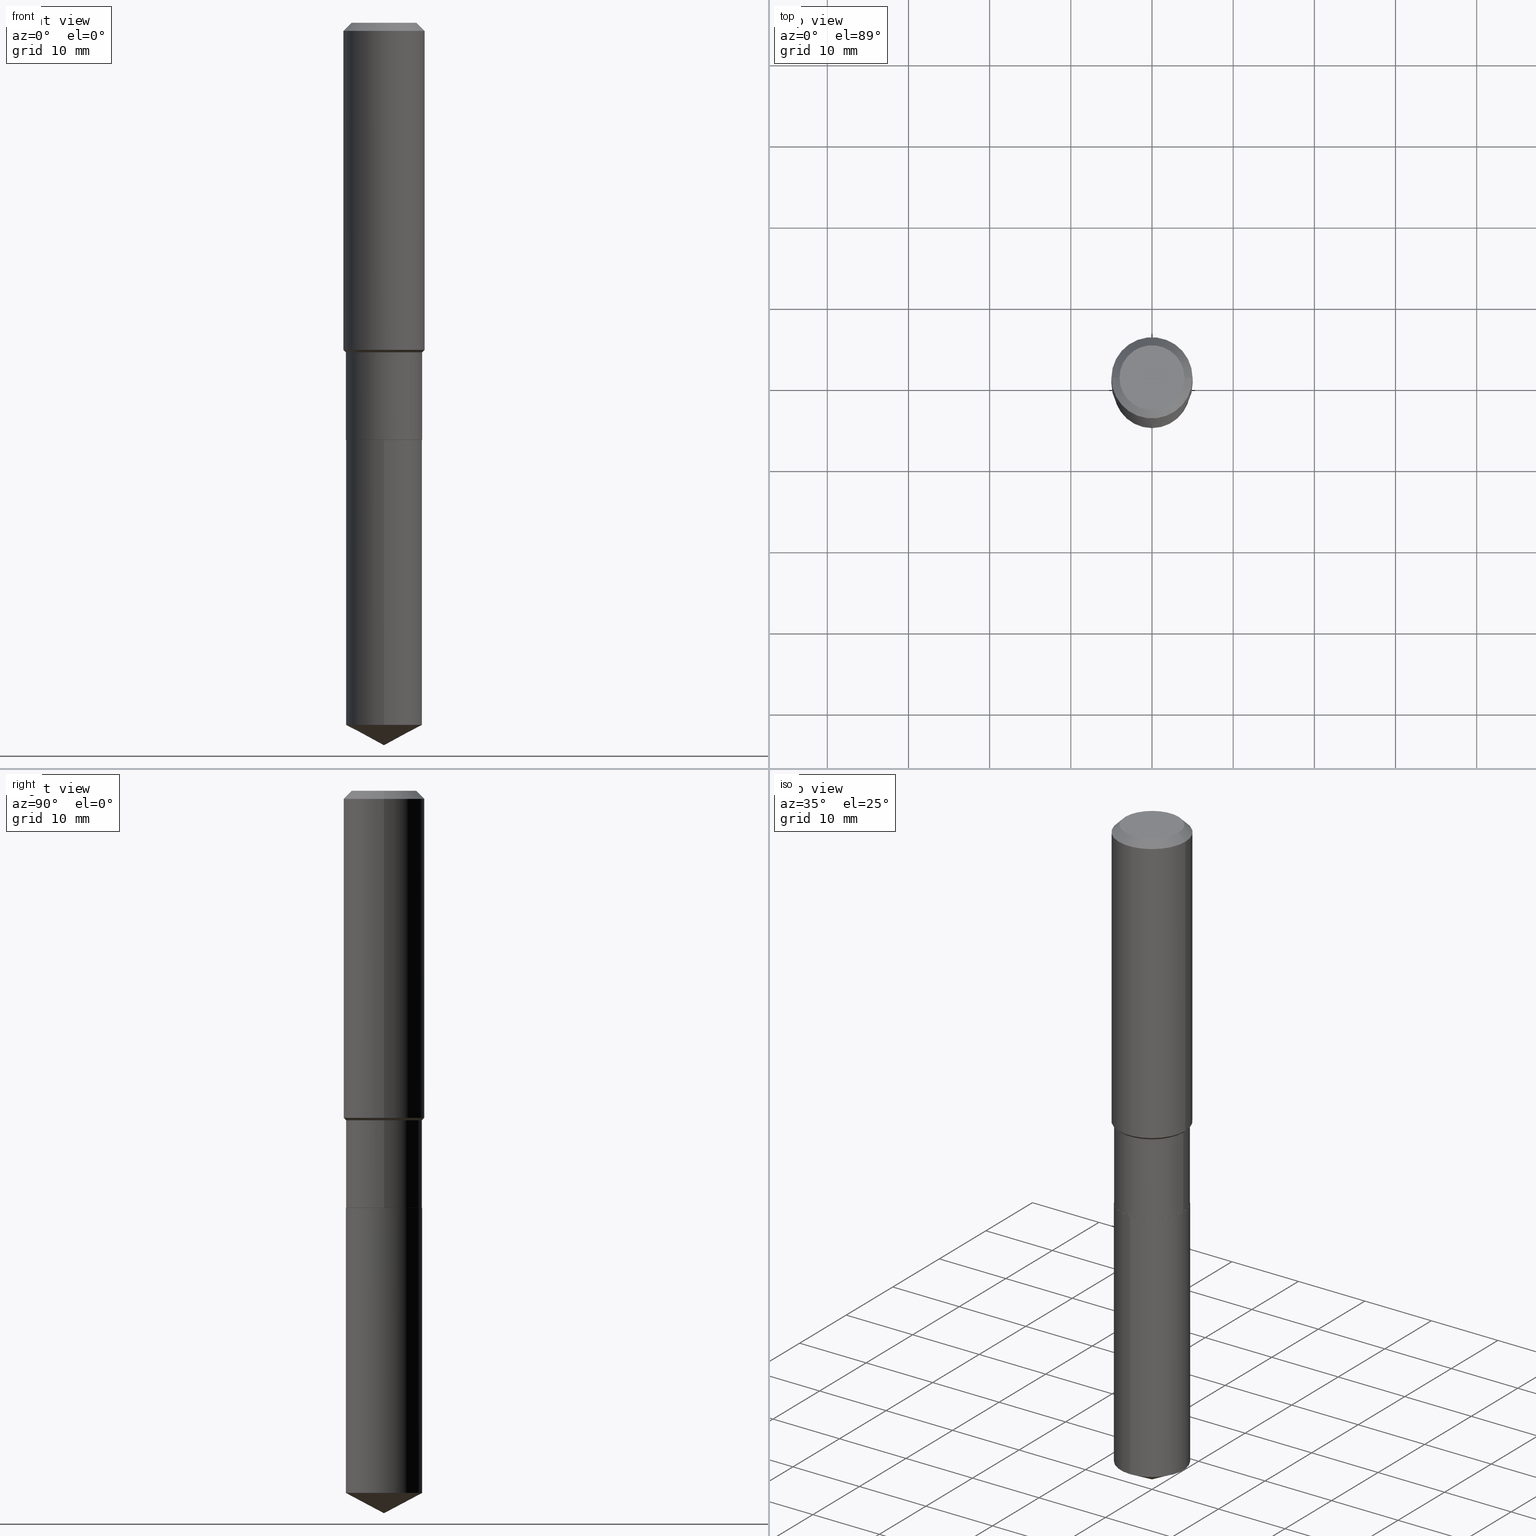
[diagram: canonical four-view strip — front | top / right | iso, engineering-drawing reading convention]
A machine part, canonical four-view strip (front | top / right | iso — engineering-drawing reading convention). The complete STEP part file that produces these views, byte-faithful:
ISO-10303-21;
HEADER;
FILE_DESCRIPTION (( 'STEP AP203' ),
    '1' );
FILE_NAME ('67664.STEP',
    '2024-04-25T08:45:09',
    ( '' ),
    ( '' ),
    'SwSTEP 2.0',
    'SolidWorks 2023',
    '' );
FILE_SCHEMA (( 'CONFIG_CONTROL_DESIGN' ));
ENDSEC;

DATA;
#1 = ADVANCED_FACE ( 'NONE', ( #170 ), #181, .T. ) ;
#2 = DIRECTION ( 'NONE',  ( -2.445468806185136877E-29, 3.491481338843145188E-15, 1.000000000000000000 ) ) ;
#3 = FACE_OUTER_BOUND ( 'NONE', #143, .T. ) ;
#4 = DIRECTION ( 'NONE',  ( -2.438088387897960049E-29, 3.491481338843145188E-15, 1.000000000000000000 ) ) ;
#5 = AXIS2_PLACEMENT_3D ( 'NONE', #405, #36, #151 ) ;
#6 = AXIS2_PLACEMENT_3D ( 'NONE', #104, #395, #252 ) ;
#7 = EDGE_CURVE ( 'NONE', #124, #20, #22, .T. ) ;
#8 = DIRECTION ( 'NONE',  ( 1.000000000000000000, -6.982962677686265922E-15, 4.876176775795935793E-29 ) ) ;
#9 = ADVANCED_FACE ( 'NONE', ( #106 ), #403, .T. ) ;
#10 = PLANE ( 'NONE',  #28 ) ;
#11 = AXIS2_PLACEMENT_3D ( 'NONE', #12, #423, #97 ) ;
#12 = CARTESIAN_POINT ( 'NONE',  ( 0.000000000000000000, 0.000000000000000000, 0.000000000000000000 ) ) ;
#13 = LINE ( 'NONE', #299, #365 ) ;
#14 = DIRECTION ( 'NONE',  ( -2.445468806185136597E-29, 3.491481338843145583E-15, 1.000000000000000000 ) ) ;
#15 = VERTEX_POINT ( 'NONE', #142 ) ;
#16 = AXIS2_PLACEMENT_3D ( 'NONE', #226, #111, #412 ) ;
#17 = DIRECTION ( 'NONE',  ( -2.445517431145861124E-29, 3.491411705131827095E-15, 1.000000000000000000 ) ) ;
#18 = DIRECTION ( 'NONE',  ( -6.982962677686265133E-15, -1.000000000000000000, 2.952551195530141356E-15 ) ) ;
#19 = VERTEX_POINT ( 'NONE', #281 ) ;
#20 = VERTEX_POINT ( 'NONE', #438 ) ;
#21 = DIRECTION ( 'NONE',  ( -2.445468806185136597E-29, 3.491481338843145583E-15, 1.000000000000000000 ) ) ;
#22 = LINE ( 'NONE', #248, #374 ) ;
#23 = DIRECTION ( 'NONE',  ( 1.000000000000000000, -6.982962677686265922E-15, 0.000000000000000000 ) ) ;
#24 = EDGE_LOOP ( 'NONE', ( #359, #310, #61, #440 ) ) ;
#25 = CARTESIAN_POINT ( 'NONE',  ( -0.1850499999999999368, 1.314859332524064945E-15, -9.102489384516700747E-30 ) ) ;
#26 = DIRECTION ( 'NONE',  ( -2.445517431145861124E-29, 3.491411705131827095E-15, 1.000000000000000000 ) ) ;
#27 = DIRECTION ( 'NONE',  ( 1.000000000000000000, -6.982962677686265922E-15, 0.000000000000000000 ) ) ;
#28 = AXIS2_PLACEMENT_3D ( 'NONE', #95, #457, #304 ) ;
#29 = LOCAL_TIME ( 4, 45, 9.000000000000000000, #237 ) ;
#30 = CARTESIAN_POINT ( 'NONE',  ( -0.1850499999999999090, -4.264527846947281342E-15, -1.597999999999999643 ) ) ;
#31 = EDGE_LOOP ( 'NONE', ( #308, #482 ) ) ;
#32 = CALENDAR_DATE ( 2024, 25, 4 ) ;
#33 = ORIENTED_EDGE ( 'NONE', *, *, #473, .F. ) ;
#34 = LINE ( 'NONE', #312, #367 ) ;
#35 = DIRECTION ( 'NONE',  ( -2.445468806185136597E-29, 3.491481338843145583E-15, 1.000000000000000000 ) ) ;
#36 = DIRECTION ( 'NONE',  ( -2.445468806185136597E-29, 3.491481338843145583E-15, 1.000000000000000000 ) ) ;
#37 = VECTOR ( 'NONE', #179, 39.37007874015748143 ) ;
#38 = LOCAL_TIME ( 4, 45, 9.000000000000000000, #140 ) ;
#39 = VERTEX_POINT ( 'NONE', #400 ) ;
#40 = CARTESIAN_POINT ( 'NONE',  ( 3.907859152283848022E-29, -5.579387179471346287E-15, -1.597999999999999643 ) ) ;
#41 = PERSON_AND_ORGANIZATION_ROLE ( 'creator' ) ;
#42 = CIRCLE ( 'NONE', #102, 0.1850499999999999923 ) ;
#43 = CARTESIAN_POINT ( 'NONE',  ( 4.948650676196241876E-29, -7.065361637282988500E-15, -2.023599999999999621 ) ) ;
#44 = CARTESIAN_POINT ( 'NONE',  ( 3.907859152283848022E-29, -5.579387179471346287E-15, -1.597999999999999643 ) ) ;
#45 = FACE_OUTER_BOUND ( 'NONE', #76, .T. ) ;
#46 = VECTOR ( 'NONE', #229, 39.37007874015748143 ) ;
#47 = AXIS2_PLACEMENT_3D ( 'NONE', #323, #35, #27 ) ;
#48 = CC_DESIGN_PERSON_AND_ORGANIZATION_ASSIGNMENT ( #373, #372, ( #184 ) ) ;
#49 = CARTESIAN_POINT ( 'NONE',  ( 0.1968500000000000250, -1.512055823412797189E-15, -0.03937000000000029365 ) ) ;
#50 = CARTESIAN_POINT ( 'NONE',  ( 8.328128747852220188E-29, -1.189016850487806495E-14, -3.405507169671043499 ) ) ;
#51 = DIRECTION ( 'NONE',  ( 1.000000000000000000, -6.982962677686265922E-15, 0.000000000000000000 ) ) ;
#52 = EDGE_CURVE ( 'NONE', #472, #109, #397, .T. ) ;
#53 = CARTESIAN_POINT ( 'NONE',  ( 0.1850499999999999090, -6.871584422977188194E-15, -1.597999999999999643 ) ) ;
#54 = DIRECTION ( 'NONE',  ( 1.000000000000000000, 0.000000000000000000, 0.000000000000000000 ) ) ;
#55 = CARTESIAN_POINT ( 'NONE',  ( -0.1574800000000000089, 1.168406772637159618E-15, 3.855188123707939751E-18 ) ) ;
#56 = PERSON_AND_ORGANIZATION ( #284, #417 ) ;
#57 = VECTOR ( 'NONE', #487, 39.37007874015748143 ) ;
#58 = FACE_OUTER_BOUND ( 'NONE', #212, .T. ) ;
#59 = ORIENTED_EDGE ( 'NONE', *, *, #294, .T. ) ;
#60 = CC_DESIGN_PERSON_AND_ORGANIZATION_ASSIGNMENT ( #56, #272, ( #408 ) ) ;
#61 = ORIENTED_EDGE ( 'NONE', *, *, #459, .F. ) ;
#62 = ADVANCED_FACE ( 'NONE', ( #489 ), #215, .T. ) ;
#63 = ORIENTED_EDGE ( 'NONE', *, *, #198, .F. ) ;
#64 = FACE_OUTER_BOUND ( 'NONE', #360, .T. ) ;
#65 = ORIENTED_EDGE ( 'NONE', *, *, #144, .T. ) ;
#66 = FACE_OUTER_BOUND ( 'NONE', #430, .T. ) ;
#67 = AXIS2_PLACEMENT_3D ( 'NONE', #127, #265, #51 ) ;
#68 = ORIENTED_EDGE ( 'NONE', *, *, #7, .F. ) ;
#69 = AXIS2_PLACEMENT_3D ( 'NONE', #355, #21, #448 ) ;
#70 = EDGE_CURVE ( 'NONE', #109, #279, #333, .T. ) ;
#71 = VERTEX_POINT ( 'NONE', #49 ) ;
#72 = EDGE_CURVE ( 'NONE', #15, #19, #286, .T. ) ;
#73 = CARTESIAN_POINT ( 'NONE',  ( 0.000000000000000000, 0.000000000000000000, 0.000000000000000000 ) ) ;
#74 =( CONVERSION_BASED_UNIT ( 'INCH', #364 ) LENGTH_UNIT ( ) NAMED_UNIT ( #185 ) );
#75 = DIRECTION ( 'NONE',  ( -0.7071067811865526798, 7.493145998870373093E-15, 0.7071067811865424657 ) ) ;
#76 = EDGE_LOOP ( 'NONE', ( #68, #381, #285 ) ) ;
#77 = APPROVAL_ROLE ( '' ) ;
#78 = AXIS2_PLACEMENT_3D ( 'NONE', #236, #17, #123 ) ;
#79 = DIRECTION ( 'NONE',  ( -6.982962677686265133E-15, -1.000000000000000000, 2.952551195530141356E-15 ) ) ;
#80 = AXIS2_PLACEMENT_3D ( 'NONE', #238, #203, #340 ) ;
#81 = EDGE_CURVE ( 'NONE', #194, #71, #84, .T. ) ;
#82 = DIRECTION ( 'NONE',  ( -2.445468806185136597E-29, 3.491481338843145583E-15, 1.000000000000000000 ) ) ;
#83 = ORIENTED_EDGE ( 'NONE', *, *, #486, .F. ) ;
#84 = CIRCLE ( 'NONE', #152, 0.1968500000000000250 ) ;
#85 = EDGE_CURVE ( 'NONE', #138, #466, #13, .T. ) ;
#86 = EDGE_CURVE ( 'NONE', #19, #15, #358, .T. ) ;
#87 = CARTESIAN_POINT ( 'NONE',  ( 0.1968500000000000250, -1.487948651171581601E-15, -0.03937000000000029365 ) ) ;
#88 = ADVANCED_FACE ( 'NONE', ( #163 ), #378, .T. ) ;
#89 = CARTESIAN_POINT ( 'NONE',  ( 4.948650676196241876E-29, -7.065361637282988500E-15, -2.023599999999999621 ) ) ;
#90 = AXIS2_PLACEMENT_3D ( 'NONE', #232, #422, #263 ) ;
#91 = AXIS2_PLACEMENT_3D ( 'NONE', #43, #4, #8 ) ;
#92 = EDGE_CURVE ( 'NONE', #39, #472, #126, .T. ) ;
#93 = CARTESIAN_POINT ( 'NONE',  ( 0.1845499999999999363, -8.354067399449988978E-15, -2.023599999999999621 ) ) ;
#94 = DIRECTION ( 'NONE',  ( 2.445468806185136597E-29, -3.491481338843145583E-15, -1.000000000000000000 ) ) ;
#95 = CARTESIAN_POINT ( 'NONE',  ( -4.713871149261283817E-47, 6.730158695841841775E-33, 1.927594061857935365E-18 ) ) ;
#96 = EDGE_LOOP ( 'NONE', ( #393, #187 ) ) ;
#97 = DIRECTION ( 'NONE',  ( 1.000000000000000000, -6.982962677686266711E-15, 4.876176775795935793E-29 ) ) ;
#98 = EDGE_CURVE ( 'NONE', #466, #242, #434, .T. ) ;
#99 = ORIENTED_EDGE ( 'NONE', *, *, #81, .T. ) ;
#100 = MECHANICAL_CONTEXT ( 'NONE', #324, 'mechanical' ) ;
#101 = EDGE_CURVE ( 'NONE', #210, #71, #261, .T. ) ;
#102 = AXIS2_PLACEMENT_3D ( 'NONE', #50, #233, #467 ) ;
#103 = DESIGN_CONTEXT ( 'detailed design', #409, 'design' ) ;
#104 = CARTESIAN_POINT ( 'NONE',  ( -9.427742298522567634E-47, 1.346031739168368355E-32, 3.855188123715870730E-18 ) ) ;
#105 = ORIENTED_EDGE ( 'NONE', *, *, #121, .T. ) ;
#106 = FACE_OUTER_BOUND ( 'NONE', #271, .T. ) ;
#107 = ORIENTED_EDGE ( 'NONE', *, *, #81, .F. ) ;
#108 = COORDINATED_UNIVERSAL_TIME_OFFSET ( 5, 0, .BEHIND. ) ;
#109 = VERTEX_POINT ( 'NONE', #384 ) ;
#110 = EDGE_LOOP ( 'NONE', ( #326, #318, #356, #148 ) ) ;
#111 = DIRECTION ( 'NONE',  ( -2.445468806185136597E-29, 3.491481338843145583E-15, 1.000000000000000000 ) ) ;
#112 = AXIS2_PLACEMENT_3D ( 'NONE', #208, #145, #171 ) ;
#113 = DIRECTION ( 'NONE',  ( 1.000000000000000000, -6.982962677686265922E-15, 4.876223630392693006E-29 ) ) ;
#114 = PERSON_AND_ORGANIZATION_ROLE ( 'creator' ) ;
#115 = DATE_AND_TIME ( #441, #391 ) ;
#116 = DIRECTION ( 'NONE',  ( -2.445468806185136597E-29, 3.491481338843145583E-15, 1.000000000000000000 ) ) ;
#117 = CONICAL_SURFACE ( 'NONE', #130, 0.1850499999999999090, 0.7853981633974554954 ) ;
#118 = ORIENTED_EDGE ( 'NONE', *, *, #336, .T. ) ;
#119 = ORIENTED_EDGE ( 'NONE', *, *, #134, .T. ) ;
#120 = CARTESIAN_POINT ( 'NONE',  ( 4.948650676196241876E-29, -7.065361637282988500E-15, -2.023599999999999621 ) ) ;
#121 = EDGE_CURVE ( 'NONE', #39, #174, #199, .T. ) ;
#122 = CC_DESIGN_APPROVAL ( #421, ( #293 ) ) ;
#123 = DIRECTION ( 'NONE',  ( -6.982962677686265133E-15, -1.000000000000000000, 2.952551195530141356E-15 ) ) ;
#124 = VERTEX_POINT ( 'NONE', #162 ) ;
#125 = CARTESIAN_POINT ( 'NONE',  ( -0.1968500000000001082, 1.398703375343757985E-15, -9.682923725166787881E-30 ) ) ;
#126 = LINE ( 'NONE', #303, #425 ) ;
#127 = CARTESIAN_POINT ( 'NONE',  ( 4.948650676196241876E-29, -7.065361637282988500E-15, -2.023599999999999621 ) ) ;
#128 = CARTESIAN_POINT ( 'NONE',  ( -1.292197243505793786E-15, -0.1850500000000070422, -2.023599999999999177 ) ) ;
#129 = AXIS2_PLACEMENT_3D ( 'NONE', #267, #301, #18 ) ;
#130 = AXIS2_PLACEMENT_3D ( 'NONE', #40, #82, #363 ) ;
#131 = DIRECTION ( 'NONE',  ( 0.000000000000000000, 0.000000000000000000, 1.000000000000000000 ) ) ;
#132 = DIRECTION ( 'NONE',  ( -2.445468806185136597E-29, 3.491481338843145583E-15, 1.000000000000000000 ) ) ;
#133 = DIRECTION ( 'NONE',  ( -2.445517431145861124E-29, 3.491411705131827095E-15, 1.000000000000000000 ) ) ;
#134 = EDGE_CURVE ( 'NONE', #246, #194, #269, .T. ) ;
#135 = FACE_OUTER_BOUND ( 'NONE', #352, .T. ) ;
#136 = ORIENTED_EDGE ( 'NONE', *, *, #7, .T. ) ;
#137 = APPROVAL_ROLE ( '' ) ;
#138 = VERTEX_POINT ( 'NONE', #483 ) ;
#139 = AXIS2_PLACEMENT_3D ( 'NONE', #197, #202, #343 ) ;
#140 = COORDINATED_UNIVERSAL_TIME_OFFSET ( 5, 0, .BEHIND. ) ;
#141 = CARTESIAN_POINT ( 'NONE',  ( 1.314859332524148564E-15, 0.1850499999999929146, -2.023600000000000065 ) ) ;
#142 = CARTESIAN_POINT ( 'NONE',  ( -0.1968500000000002192, -4.139484324329237071E-15, -1.586199999999999610 ) ) ;
#143 = EDGE_LOOP ( 'NONE', ( #362, #65, #399, #344 ) ) ;
#144 = EDGE_CURVE ( 'NONE', #472, #436, #345, .T. ) ;
#145 = DIRECTION ( 'NONE',  ( -2.445517431145861124E-29, 3.491411705131827095E-15, 1.000000000000000000 ) ) ;
#146 = VECTOR ( 'NONE', #309, 39.37007874015748854 ) ;
#147 = DIRECTION ( 'NONE',  ( -2.445468806185136877E-29, 3.491481338843145188E-15, 1.000000000000000000 ) ) ;
#148 = ORIENTED_EDGE ( 'NONE', *, *, #321, .F. ) ;
#149 = PERSON_AND_ORGANIZATION ( #284, #417 ) ;
#150 = ORIENTED_EDGE ( 'NONE', *, *, #294, .F. ) ;
#151 = DIRECTION ( 'NONE',  ( 1.000000000000000000, -6.982962677686267499E-15, 0.000000000000000000 ) ) ;
#152 = AXIS2_PLACEMENT_3D ( 'NONE', #419, #339, #427 ) ;
#153 = CARTESIAN_POINT ( 'NONE',  ( 4.948650676196241876E-29, -7.065361637282988500E-15, -2.023599999999999621 ) ) ;
#154 = CC_DESIGN_APPROVAL ( #476, ( #184 ) ) ;
#155 = ADVANCED_FACE ( 'NONE', ( #66 ), #379, .T. ) ;
#156 = PERSON_AND_ORGANIZATION ( #284, #417 ) ;
#157 = DIRECTION ( 'NONE',  ( 1.000000000000000000, -6.982962677686265922E-15, 0.000000000000000000 ) ) ;
#158 = ADVANCED_FACE ( 'NONE', ( #164 ), #314, .T. ) ;
#159 = EDGE_CURVE ( 'NONE', #124, #138, #235, .T. ) ;
#160 = COORDINATED_UNIVERSAL_TIME_OFFSET ( 5, 0, .BEHIND. ) ;
#161 = DIRECTION ( 'NONE',  ( 1.000000000000000000, -6.982962677686265922E-15, 0.000000000000000000 ) ) ;
#162 = CARTESIAN_POINT ( 'NONE',  ( 8.568848526991982211E-29, -1.223355747361140877E-14, -3.503899999999999793 ) ) ;
#163 = FACE_OUTER_BOUND ( 'NONE', #277, .T. ) ;
#164 = FACE_OUTER_BOUND ( 'NONE', #415, .T. ) ;
#165 = AXIS2_PLACEMENT_3D ( 'NONE', #73, #219, #398 ) ;
#166 = CIRCLE ( 'NONE', #47, 0.1968500000000000250 ) ;
#167 = ORIENTED_EDGE ( 'NONE', *, *, #144, .F. ) ;
#168 = ADVANCED_FACE ( 'NONE', ( #465 ), #10, .F. ) ;
#169 = CARTESIAN_POINT ( 'NONE',  ( 3.879002620370862839E-29, -5.538187699672996436E-15, -1.586199999999999610 ) ) ;
#170 = FACE_OUTER_BOUND ( 'NONE', #24, .T. ) ;
#171 = DIRECTION ( 'NONE',  ( -6.982962677686266711E-15, -1.000000000000000000, 3.541896320645566785E-15 ) ) ;
#172 = DIRECTION ( 'NONE',  ( -6.165590087286832085E-15, -0.8829475928589258782, 0.4694715627858925822 ) ) ;
#173 = DIRECTION ( 'NONE',  ( -2.445468806185136597E-29, 3.491481338843145583E-15, 1.000000000000000000 ) ) ;
#174 = VERTEX_POINT ( 'NONE', #93 ) ;
#175 = EDGE_CURVE ( 'NONE', #20, #138, #334, .T. ) ;
#176 = CLOSED_SHELL ( 'NONE', ( #1, #221, #250, #155, #249 ) ) ;
#177 = CONICAL_SURFACE ( 'NONE', #112, 74.04434902938341168, 1.082104136236485825 ) ;
#178 = DIRECTION ( 'NONE',  ( -6.982962677686265133E-15, -1.000000000000000000, 2.952551195530141356E-15 ) ) ;
#179 = DIRECTION ( 'NONE',  ( -2.445517431145861124E-29, 3.491411705131826701E-15, 1.000000000000000000 ) ) ;
#180 = PERSON_AND_ORGANIZATION ( #284, #417 ) ;
#181 = CYLINDRICAL_SURFACE ( 'NONE', #458, 0.1850499999999999923 ) ;
#182 = CARTESIAN_POINT ( 'NONE',  ( -9.427742298522567634E-47, 1.346031739168368355E-32, 3.855188123715870730E-18 ) ) ;
#183 = ORIENTED_EDGE ( 'NONE', *, *, #52, .T. ) ;
#184 = PRODUCT_DEFINITION_FORMATION_WITH_SPECIFIED_SOURCE ( 'ANY', '', #408, .NOT_KNOWN. ) ;
#185 = DIMENSIONAL_EXPONENTS ( 1.000000000000000000, 0.000000000000000000, 0.000000000000000000, 0.000000000000000000, 0.000000000000000000, 0.000000000000000000, 0.000000000000000000 ) ;
#186 = ADVANCED_FACE ( 'NONE', ( #454 ), #201, .T. ) ;
#187 = ORIENTED_EDGE ( 'NONE', *, *, #98, .T. ) ;
#188 = CC_DESIGN_DATE_AND_TIME_ASSIGNMENT ( #464, #204, ( #382 ) ) ;
#189 = DIRECTION ( 'NONE',  ( -2.445468806185136877E-29, 3.491481338843145188E-15, 1.000000000000000000 ) ) ;
#190 = DIRECTION ( 'NONE',  ( 1.000000000000000000, -6.982962677686265922E-15, 0.000000000000000000 ) ) ;
#191 = AXIS2_PLACEMENT_3D ( 'NONE', #256, #116, #255 ) ;
#192 = SECURITY_CLASSIFICATION_LEVEL ( 'unclassified' ) ;
#193 = EDGE_CURVE ( 'NONE', #15, #194, #383, .T. ) ;
#194 = VERTEX_POINT ( 'NONE', #456 ) ;
#195 = CC_DESIGN_PERSON_AND_ORGANIZATION_ASSIGNMENT ( #156, #376, ( #382 ) ) ;
#196 =( NAMED_UNIT ( * ) PLANE_ANGLE_UNIT ( ) SI_UNIT ( $, .RADIAN. ) );
#197 = CARTESIAN_POINT ( 'NONE',  ( 9.627810689950954155E-31, -1.374596203102556547E-16, -0.03937000000000029365 ) ) ;
#198 = EDGE_CURVE ( 'NONE', #279, #19, #385, .T. ) ;
#199 = CIRCLE ( 'NONE', #67, 0.1845499999999999363 ) ;
#200 = DIRECTION ( 'NONE',  ( -1.000000000000000000, 6.982962677686265922E-15, 0.000000000000000000 ) ) ;
#201 = CYLINDRICAL_SURFACE ( 'NONE', #11, 0.1968500000000001082 ) ;
#202 = DIRECTION ( 'NONE',  ( 2.445468806185136597E-29, -3.491481338843145583E-15, -1.000000000000000000 ) ) ;
#203 = DIRECTION ( 'NONE',  ( -2.445517431145861124E-29, 3.491411705131827095E-15, 1.000000000000000000 ) ) ;
#204 = DATE_TIME_ROLE ( 'classification_date' ) ;
#205 = AXIS2_PLACEMENT_3D ( 'NONE', #44, #14, #420 ) ;
#206 = ORIENTED_EDGE ( 'NONE', *, *, #70, .T. ) ;
#207 = APPLICATION_PROTOCOL_DEFINITION ( 'international standard', 'config_control_design', 1994, #409 ) ;
#208 = CARTESIAN_POINT ( 'NONE',  ( -8.771146369511874406E-28, 1.252234553609578962E-13, 35.86617874015747987 ) ) ;
#209 = ORIENTED_EDGE ( 'NONE', *, *, #305, .T. ) ;
#210 = VERTEX_POINT ( 'NONE', #342 ) ;
#211 = CARTESIAN_POINT ( 'NONE',  ( 4.948650676196241876E-29, -7.065361637282988500E-15, -2.023599999999999621 ) ) ;
#212 = EDGE_LOOP ( 'NONE', ( #449, #206, #446, #404 ) ) ;
#213 = LINE ( 'NONE', #30, #426 ) ;
#214 = EDGE_LOOP ( 'NONE', ( #481, #357, #33, #150 ) ) ;
#215 = CONICAL_SURFACE ( 'NONE', #390, 0.1968500000000000250, 0.7853981633974447263 ) ;
#216 = CONICAL_SURFACE ( 'NONE', #80, 74.04434902938341168, 1.082104136236485825 ) ;
#217 = LOCAL_TIME ( 4, 45, 9.000000000000000000, #160 ) ;
#218 = DIRECTION ( 'NONE',  ( 6.982962677686265922E-15, 1.000000000000000000, -3.491411705131826701E-15 ) ) ;
#219 = DIRECTION ( 'NONE',  ( -2.445468806185136597E-29, 3.491481338843145583E-15, 1.000000000000000000 ) ) ;
#220 = EDGE_LOOP ( 'NONE', ( #477, #485, #322, #406 ) ) ;
#221 = ADVANCED_FACE ( 'NONE', ( #45 ), #216, .T. ) ;
#222 = EDGE_CURVE ( 'NONE', #138, #20, #42, .T. ) ;
#223 = CIRCLE ( 'NONE', #316, 0.1850499999999999923 ) ;
#224 = FACE_OUTER_BOUND ( 'NONE', #274, .T. ) ;
#225 = APPROVAL_DATE_TIME ( #283, #421 ) ;
#226 = CARTESIAN_POINT ( 'NONE',  ( 3.907859152283848022E-29, -5.579387179471346287E-15, -1.597999999999999643 ) ) ;
#227 = FACE_OUTER_BOUND ( 'NONE', #110, .T. ) ;
#228 = CC_DESIGN_PERSON_AND_ORGANIZATION_ASSIGNMENT ( #478, #41, ( #184 ) ) ;
#229 = DIRECTION ( 'NONE',  ( 0.7071067811865450192, -7.319954787623246579E-15, -0.7071067811865500152 ) ) ;
#230 = DIRECTION ( 'NONE',  ( -6.982962677686265133E-15, -1.000000000000000000, 2.952551195530141356E-15 ) ) ;
#231 = AXIS2_PLACEMENT_3D ( 'NONE', #273, #133, #230 ) ;
#232 = CARTESIAN_POINT ( 'NONE',  ( 3.879002620370862839E-29, -5.538187699672996436E-15, -1.586199999999999610 ) ) ;
#233 = DIRECTION ( 'NONE',  ( -2.445517431145861124E-29, 3.491411705131827095E-15, 1.000000000000000000 ) ) ;
#234 = ADVANCED_FACE ( 'NONE', ( #135 ), #338, .T. ) ;
#235 = LINE ( 'NONE', #307, #146 ) ;
#236 = CARTESIAN_POINT ( 'NONE',  ( 4.948650676196241876E-29, -7.065361637282988500E-15, -2.023599999999999621 ) ) ;
#237 = COORDINATED_UNIVERSAL_TIME_OFFSET ( 5, 0, .BEHIND. ) ;
#238 = CARTESIAN_POINT ( 'NONE',  ( -8.771146369511874406E-28, 1.252234553609578962E-13, 35.86617874015747987 ) ) ;
#239 = DIRECTION ( 'NONE',  ( 0.7071067811865526798, -2.468850131082310309E-15, 0.7071067811865424657 ) ) ;
#240 = AXIS2_PLACEMENT_3D ( 'NONE', #182, #173, #113 ) ;
#241 = APPROVAL_PERSON_ORGANIZATION ( #149, #476, #77 ) ;
#242 = VERTEX_POINT ( 'NONE', #128 ) ;
#243 = SHAPE_DEFINITION_REPRESENTATION ( #439, #424 ) ;
#244 = ORIENTED_EDGE ( 'NONE', *, *, #260, .F. ) ;
#245 = CARTESIAN_POINT ( 'NONE',  ( 0.1850499999999999090, -6.871584422977188194E-15, -1.597999999999999643 ) ) ;
#246 = VERTEX_POINT ( 'NONE', #55 ) ;
#247 = CONICAL_SURFACE ( 'NONE', #445, 0.1845499999999999363, 0.7853981633975849475 ) ;
#248 = CARTESIAN_POINT ( 'NONE',  ( 8.568651732050938529E-29, -1.223383929516785633E-14, -3.503899999999999793 ) ) ;
#249 = ADVANCED_FACE ( 'NONE', ( #392 ), #337, .F. ) ;
#250 = ADVANCED_FACE ( 'NONE', ( #64 ), #177, .T. ) ;
#251 = DATE_TIME_ROLE ( 'creation_date' ) ;
#252 = DIRECTION ( 'NONE',  ( 1.000000000000000000, -6.982962677686265922E-15, 4.876223630392693006E-29 ) ) ;
#253 = APPROVAL_STATUS ( 'not_yet_approved' ) ;
#254 = AXIS2_PLACEMENT_3D ( 'NONE', #89, #388, #157 ) ;
#255 = DIRECTION ( 'NONE',  ( 1.000000000000000000, -6.982962677686267499E-15, 4.876176775795935793E-29 ) ) ;
#256 = CARTESIAN_POINT ( 'NONE',  ( 0.000000000000000000, 0.000000000000000000, 0.000000000000000000 ) ) ;
#257 = DIRECTION ( 'NONE',  ( -2.445468806185136597E-29, 3.491481338843145583E-15, 1.000000000000000000 ) ) ;
#258 = ORIENTED_EDGE ( 'NONE', *, *, #222, .F. ) ;
#259 = AXIS2_PLACEMENT_3D ( 'NONE', #211, #444, #23 ) ;
#260 = EDGE_CURVE ( 'NONE', #246, #210, #450, .T. ) ;
#261 = LINE ( 'NONE', #87, #46 ) ;
#262 = EDGE_CURVE ( 'NONE', #174, #39, #402, .T. ) ;
#263 = DIRECTION ( 'NONE',  ( 1.000000000000000000, -6.982962677686265922E-15, 0.000000000000000000 ) ) ;
#264 = DIRECTION ( 'NONE',  ( 2.445517431145861124E-29, -3.491411705131826701E-15, -1.000000000000000000 ) ) ;
#265 = DIRECTION ( 'NONE',  ( -2.445468806185136597E-29, 3.491481338843145583E-15, 1.000000000000000000 ) ) ;
#266 = CONICAL_SURFACE ( 'NONE', #69, 0.1850499999999999090, 0.7853981633974554954 ) ;
#267 = CARTESIAN_POINT ( 'NONE',  ( 4.948650676196241876E-29, -7.065361637282988500E-15, -2.023599999999999621 ) ) ;
#268 = APPLICATION_PROTOCOL_DEFINITION ( 'international standard', 'config_control_design', 1994, #324 ) ;
#269 = LINE ( 'NONE', #368, #474 ) ;
#270 = DIRECTION ( 'NONE',  ( 1.000000000000000000, -6.982962677686267499E-15, 4.876176775795935793E-29 ) ) ;
#271 = EDGE_LOOP ( 'NONE', ( #468, #332, #59, #107 ) ) ;
#272 = PERSON_AND_ORGANIZATION_ROLE ( 'design_owner' ) ;
#273 = CARTESIAN_POINT ( 'NONE',  ( 8.328128747852220188E-29, -1.189016850487806495E-14, -3.405507169671043499 ) ) ;
#274 = EDGE_LOOP ( 'NONE', ( #431, #209, #278, #63 ) ) ;
#275 = AXIS2_PLACEMENT_3D ( 'NONE', #346, #455, #270 ) ;
#276 = AXIS2_PLACEMENT_3D ( 'NONE', #153, #414, #79 ) ;
#277 = EDGE_LOOP ( 'NONE', ( #118, #183, #83, #479 ) ) ;
#278 = ORIENTED_EDGE ( 'NONE', *, *, #86, .F. ) ;
#279 = VERTEX_POINT ( 'NONE', #245 ) ;
#280 = DIRECTION ( 'NONE',  ( -0.7071067811865450192, 2.468850131082230634E-15, -0.7071067811865500152 ) ) ;
#281 = CARTESIAN_POINT ( 'NONE',  ( 0.1968500000000002192, -6.912783902775538833E-15, -1.586199999999999610 ) ) ;
#282 = ORIENTED_EDGE ( 'NONE', *, *, #85, .F. ) ;
#283 = DATE_AND_TIME ( #32, #488 ) ;
#284 = PERSON ( 'UNSPECIFIED', 'UNSPECIFIED', 'UNSPECIFIED', ('UNSPECIFIED'), ('UNSPECIFIED'), ('UNSPECIFIED') ) ;
#285 = ORIENTED_EDGE ( 'NONE', *, *, #175, .F. ) ;
#286 = CIRCLE ( 'NONE', #90, 0.1968500000000002192 ) ;
#287 =( GEOMETRIC_REPRESENTATION_CONTEXT ( 3 ) GLOBAL_UNCERTAINTY_ASSIGNED_CONTEXT ( ( #387 ) ) GLOBAL_UNIT_ASSIGNED_CONTEXT ( ( #74, #196, #433 ) ) REPRESENTATION_CONTEXT ( 'NONE', 'WORKASPACE' ) );
#288 = DIRECTION ( 'NONE',  ( 1.000000000000000000, -6.982962677686267499E-15, 0.000000000000000000 ) ) ;
#289 = CARTESIAN_POINT ( 'NONE',  ( 9.627810689950954155E-31, -1.374596203102556547E-16, -0.03937000000000029365 ) ) ;
#290 = APPROVAL_DATE_TIME ( #328, #476 ) ;
#291 = ORIENTED_EDGE ( 'NONE', *, *, #121, .F. ) ;
#292 = MANIFOLD_SOLID_BREP ( 'Body-Move/Copy2[2]', #452 ) ;
#293 = PRODUCT_DEFINITION ( 'UNKNOWN', '', #184, #103 ) ;
#294 = EDGE_CURVE ( 'NONE', #19, #71, #34, .T. ) ;
#295 = APPROVAL_PERSON_ORGANIZATION ( #348, #421, #319 ) ;
#296 = CC_DESIGN_SECURITY_CLASSIFICATION ( #382, ( #184 ) ) ;
#297 = DIRECTION ( 'NONE',  ( -2.445517431145861124E-29, 3.491411705131826701E-15, 1.000000000000000000 ) ) ;
#298 = CARTESIAN_POINT ( 'NONE',  ( 4.948650676196241876E-29, -7.065361637282988500E-15, -2.023599999999999621 ) ) ;
#299 = CARTESIAN_POINT ( 'NONE',  ( 1.314859332524114446E-15, 0.1850499999999929146, -2.023600000000000065 ) ) ;
#300 = CALENDAR_DATE ( 2024, 25, 4 ) ;
#301 = DIRECTION ( 'NONE',  ( -2.445517431145861124E-29, 3.491411705131827095E-15, 1.000000000000000000 ) ) ;
#302 = EDGE_CURVE ( 'NONE', #210, #246, #453, .T. ) ;
#303 = CARTESIAN_POINT ( 'NONE',  ( -0.1845499999999999363, -5.754055018437723665E-15, -2.023599999999999621 ) ) ;
#304 = DIRECTION ( 'NONE',  ( -1.000000000000000000, 6.982962677686265922E-15, -4.876176775795935793E-29 ) ) ;
#305 = EDGE_CURVE ( 'NONE', #109, #15, #213, .T. ) ;
#306 = CALENDAR_DATE ( 2024, 25, 4 ) ;
#307 = CARTESIAN_POINT ( 'NONE',  ( 8.568850252651318139E-29, -1.223355747361140877E-14, -3.503899999999999793 ) ) ;
#308 = ORIENTED_EDGE ( 'NONE', *, *, #260, .T. ) ;
#309 = DIRECTION ( 'NONE',  ( 6.273719981627762132E-15, 0.8829475928589292089, 0.4694715627858863094 ) ) ;
#310 = ORIENTED_EDGE ( 'NONE', *, *, #85, .T. ) ;
#311 = PERSON_AND_ORGANIZATION ( #284, #417 ) ;
#312 = CARTESIAN_POINT ( 'NONE',  ( 0.1968500000000001082, -1.374596203102542397E-15, 9.598753983154305062E-30 ) ) ;
#313 = ORIENTED_EDGE ( 'NONE', *, *, #92, .F. ) ;
#314 = CONICAL_SURFACE ( 'NONE', #254, 0.1845499999999999363, 0.7853981633975849475 ) ;
#315 = CARTESIAN_POINT ( 'NONE',  ( 4.947427941793149075E-29, -7.063615896613566997E-15, -2.023099999999999898 ) ) ;
#316 = AXIS2_PLACEMENT_3D ( 'NONE', #315, #351, #288 ) ;
#317 = APPROVAL_PERSON_ORGANIZATION ( #311, #428, #137 ) ;
#318 = ORIENTED_EDGE ( 'NONE', *, *, #92, .T. ) ;
#319 = APPROVAL_ROLE ( '' ) ;
#320 = ORIENTED_EDGE ( 'NONE', *, *, #159, .F. ) ;
#321 = EDGE_CURVE ( 'NONE', #174, #436, #325, .T. ) ;
#322 = ORIENTED_EDGE ( 'NONE', *, *, #473, .T. ) ;
#323 = CARTESIAN_POINT ( 'NONE',  ( 9.627810689950954155E-31, -1.374596203102556547E-16, -0.03937000000000029365 ) ) ;
#324 = APPLICATION_CONTEXT ( 'configuration controlled 3d designs of mechanical parts and assemblies' ) ;
#325 = LINE ( 'NONE', #480, #57 ) ;
#326 = ORIENTED_EDGE ( 'NONE', *, *, #262, .T. ) ;
#327 = VECTOR ( 'NONE', #429, 39.37007874015748143 ) ;
#328 = DATE_AND_TIME ( #407, #38 ) ;
#329 = CC_DESIGN_DATE_AND_TIME_ASSIGNMENT ( #115, #251, ( #293 ) ) ;
#330 = PLANE ( 'NONE',  #91 ) ;
#331 = CARTESIAN_POINT ( 'NONE',  ( -1.292197243505793786E-15, -0.1850500000000070422, -2.023599999999999177 ) ) ;
#332 = ORIENTED_EDGE ( 'NONE', *, *, #72, .T. ) ;
#333 = CIRCLE ( 'NONE', #205, 0.1850499999999999090 ) ;
#334 = CIRCLE ( 'NONE', #231, 0.1850499999999999923 ) ;
#335 = PRODUCT_RELATED_PRODUCT_CATEGORY ( 'detail', '', ( #408 ) ) ;
#336 = EDGE_CURVE ( 'NONE', #436, #472, #223, .T. ) ;
#337 = PLANE ( 'NONE',  #411 ) ;
#338 = CONICAL_SURFACE ( 'NONE', #139, 0.1968500000000000250, 0.7853981633974447263 ) ;
#339 = DIRECTION ( 'NONE',  ( -2.445468806185136597E-29, 3.491481338843145583E-15, 1.000000000000000000 ) ) ;
#340 = DIRECTION ( 'NONE',  ( -6.982962677686266711E-15, -1.000000000000000000, 3.541896320645566785E-15 ) ) ;
#341 = ADVANCED_FACE ( 'NONE', ( #58 ), #266, .T. ) ;
#342 = CARTESIAN_POINT ( 'NONE',  ( 0.1574800000000000089, -1.284169937930321189E-15, 3.855188123724205385E-18 ) ) ;
#343 = DIRECTION ( 'NONE',  ( -1.000000000000000000, 6.982962677686265922E-15, 0.000000000000000000 ) ) ;
#344 = ORIENTED_EDGE ( 'NONE', *, *, #70, .F. ) ;
#345 = CIRCLE ( 'NONE', #5, 0.1850499999999999923 ) ;
#346 = CARTESIAN_POINT ( 'NONE',  ( 0.000000000000000000, 0.000000000000000000, 0.000000000000000000 ) ) ;
#347 = ORIENTED_EDGE ( 'NONE', *, *, #101, .F. ) ;
#348 = PERSON_AND_ORGANIZATION ( #284, #417 ) ;
#349 = EDGE_CURVE ( 'NONE', #20, #242, #471, .T. ) ;
#350 = ORIENTED_EDGE ( 'NONE', *, *, #222, .T. ) ;
#351 = DIRECTION ( 'NONE',  ( -2.445468806185136597E-29, 3.491481338843145583E-15, 1.000000000000000000 ) ) ;
#352 = EDGE_LOOP ( 'NONE', ( #347, #244, #119, #99 ) ) ;
#353 = CARTESIAN_POINT ( 'NONE',  ( 4.948650676196241876E-29, -7.065361637282988500E-15, -2.023599999999999621 ) ) ;
#354 = APPROVAL_DATE_TIME ( #443, #428 ) ;
#355 = CARTESIAN_POINT ( 'NONE',  ( 3.907859152283848022E-29, -5.579387179471346287E-15, -1.597999999999999643 ) ) ;
#356 = ORIENTED_EDGE ( 'NONE', *, *, #336, .F. ) ;
#357 = ORIENTED_EDGE ( 'NONE', *, *, #193, .T. ) ;
#358 = CIRCLE ( 'NONE', #416, 0.1968500000000002192 ) ;
#359 = ORIENTED_EDGE ( 'NONE', *, *, #175, .T. ) ;
#360 = EDGE_LOOP ( 'NONE', ( #320, #136, #258 ) ) ;
#361 = CARTESIAN_POINT ( 'NONE',  ( -0.1850499999999999923, -5.006642205518390514E-15, -2.023099999999999898 ) ) ;
#362 = ORIENTED_EDGE ( 'NONE', *, *, #52, .F. ) ;
#363 = DIRECTION ( 'NONE',  ( 1.000000000000000000, -6.982962677686265133E-15, 0.000000000000000000 ) ) ;
#364 = LENGTH_MEASURE_WITH_UNIT ( LENGTH_MEASURE( 0.02539999999999999897 ), #451 );
#365 = VECTOR ( 'NONE', #297, 39.37007874015748143 ) ;
#366 = COORDINATED_UNIVERSAL_TIME_OFFSET ( 5, 0, .BEHIND. ) ;
#367 = VECTOR ( 'NONE', #147, 39.37007874015748143 ) ;
#368 = CARTESIAN_POINT ( 'NONE',  ( -0.1968500000000000250, 1.237136582792286225E-15, -0.03937000000000029365 ) ) ;
#369 = CC_DESIGN_PERSON_AND_ORGANIZATION_ASSIGNMENT ( #180, #114, ( #293 ) ) ;
#370 = CARTESIAN_POINT ( 'NONE',  ( 0.1850499999999999368, -1.292197243505843287E-15, 9.023365123610376264E-30 ) ) ;
#371 = FACE_OUTER_BOUND ( 'NONE', #469, .T. ) ;
#372 = PERSON_AND_ORGANIZATION_ROLE ( 'design_supplier' ) ;
#373 = PERSON_AND_ORGANIZATION ( #284, #417 ) ;
#374 = VECTOR ( 'NONE', #172, 39.37007874015748143 ) ;
#375 = CIRCLE ( 'NONE', #276, 0.1850499999999999923 ) ;
#376 = PERSON_AND_ORGANIZATION_ROLE ( 'classification_officer' ) ;
#377 = ORIENTED_EDGE ( 'NONE', *, *, #98, .F. ) ;
#378 = CYLINDRICAL_SURFACE ( 'NONE', #275, 0.1850499999999999368 ) ;
#379 = CYLINDRICAL_SURFACE ( 'NONE', #129, 0.1850499999999999923 ) ;
#380 = CIRCLE ( 'NONE', #16, 0.1850499999999999090 ) ;
#381 = ORIENTED_EDGE ( 'NONE', *, *, #159, .T. ) ;
#382 = SECURITY_CLASSIFICATION ( '', '', #192 ) ;
#383 = LINE ( 'NONE', #125, #327 ) ;
#384 = CARTESIAN_POINT ( 'NONE',  ( -0.1850499999999999090, -5.006642205518391303E-15, -1.597999999999999643 ) ) ;
#385 = LINE ( 'NONE', #53, #435 ) ;
#386 = CARTESIAN_POINT ( 'NONE',  ( 0.000000000000000000, 0.000000000000000000, 0.000000000000000000 ) ) ;
#387 = UNCERTAINTY_MEASURE_WITH_UNIT (LENGTH_MEASURE( 1.000000000000000082E-05 ), #74, 'distance_accuracy_value', 'NONE');
#388 = DIRECTION ( 'NONE',  ( -2.445468806185136597E-29, 3.491481338843145583E-15, 1.000000000000000000 ) ) ;
#389 = ADVANCED_FACE ( 'NONE', ( #227 ), #247, .T. ) ;
#390 = AXIS2_PLACEMENT_3D ( 'NONE', #289, #94, #200 ) ;
#391 = LOCAL_TIME ( 4, 45, 9.000000000000000000, #366 ) ;
#392 = FACE_OUTER_BOUND ( 'NONE', #96, .T. ) ;
#393 = ORIENTED_EDGE ( 'NONE', *, *, #459, .T. ) ;
#394 = ORIENTED_EDGE ( 'NONE', *, *, #321, .T. ) ;
#395 = DIRECTION ( 'NONE',  ( -2.445468806185136597E-29, 3.491481338843145583E-15, 1.000000000000000000 ) ) ;
#396 = ORIENTED_EDGE ( 'NONE', *, *, #349, .T. ) ;
#397 = LINE ( 'NONE', #25, #442 ) ;
#398 = DIRECTION ( 'NONE',  ( 1.000000000000000000, -6.982962677686266711E-15, 4.876176775795935793E-29 ) ) ;
#399 = ORIENTED_EDGE ( 'NONE', *, *, #401, .T. ) ;
#400 = CARTESIAN_POINT ( 'NONE',  ( -0.1845499999999999363, -5.751405791263613253E-15, -2.023599999999999621 ) ) ;
#401 = EDGE_CURVE ( 'NONE', #436, #279, #418, .T. ) ;
#402 = CIRCLE ( 'NONE', #259, 0.1845499999999999363 ) ;
#403 = CYLINDRICAL_SURFACE ( 'NONE', #165, 0.1968500000000001082 ) ;
#404 = ORIENTED_EDGE ( 'NONE', *, *, #72, .F. ) ;
#405 = CARTESIAN_POINT ( 'NONE',  ( 4.947427941793149075E-29, -7.063615896613566997E-15, -2.023099999999999898 ) ) ;
#406 = ORIENTED_EDGE ( 'NONE', *, *, #134, .F. ) ;
#407 = CALENDAR_DATE ( 2024, 25, 4 ) ;
#408 = PRODUCT ( '67664', '67664', '', ( #100 ) ) ;
#409 = APPLICATION_CONTEXT ( 'configuration controlled 3d designs of mechanical parts and assemblies' ) ;
#410 = CYLINDRICAL_SURFACE ( 'NONE', #191, 0.1850499999999999368 ) ;
#411 = AXIS2_PLACEMENT_3D ( 'NONE', #298, #264, #218 ) ;
#412 = DIRECTION ( 'NONE',  ( 1.000000000000000000, -6.982962677686265133E-15, 0.000000000000000000 ) ) ;
#413 = CARTESIAN_POINT ( 'NONE',  ( 0.1850499999999999923, -8.355813140119411270E-15, -2.023099999999999898 ) ) ;
#414 = DIRECTION ( 'NONE',  ( -2.445517431145861124E-29, 3.491411705131827095E-15, 1.000000000000000000 ) ) ;
#415 = EDGE_LOOP ( 'NONE', ( #313, #105, #394, #167 ) ) ;
#416 = AXIS2_PLACEMENT_3D ( 'NONE', #169, #132, #161 ) ;
#417 = ORGANIZATION ( 'UNSPECIFIED', 'UNSPECIFIED', '' ) ;
#418 = LINE ( 'NONE', #370, #475 ) ;
#419 = CARTESIAN_POINT ( 'NONE',  ( 9.627810689950954155E-31, -1.374596203102556547E-16, -0.03937000000000029365 ) ) ;
#420 = DIRECTION ( 'NONE',  ( 1.000000000000000000, -6.982962677686265133E-15, 0.000000000000000000 ) ) ;
#421 = APPROVAL ( #432, 'UNSPECIFIED' ) ;
#422 = DIRECTION ( 'NONE',  ( -2.445468806185136597E-29, 3.491481338843145583E-15, 1.000000000000000000 ) ) ;
#423 = DIRECTION ( 'NONE',  ( -2.445468806185136597E-29, 3.491481338843145583E-15, 1.000000000000000000 ) ) ;
#424 = ADVANCED_BREP_SHAPE_REPRESENTATION ( '67664', ( #490, #292, #460 ), #287 ) ;
#425 = VECTOR ( 'NONE', #463, 39.37007874015748143 ) ;
#426 = VECTOR ( 'NONE', #75, 39.37007874015748143 ) ;
#427 = DIRECTION ( 'NONE',  ( 1.000000000000000000, -6.982962677686265922E-15, 0.000000000000000000 ) ) ;
#428 = APPROVAL ( #470, 'UNSPECIFIED' ) ;
#429 = DIRECTION ( 'NONE',  ( -2.445468806185136877E-29, 3.491481338843145188E-15, 1.000000000000000000 ) ) ;
#430 = EDGE_LOOP ( 'NONE', ( #282, #350, #396, #377 ) ) ;
#431 = ORIENTED_EDGE ( 'NONE', *, *, #486, .T. ) ;
#432 = APPROVAL_STATUS ( 'not_yet_approved' ) ;
#433 =( NAMED_UNIT ( * ) SI_UNIT ( $, .STERADIAN. ) SOLID_ANGLE_UNIT ( ) );
#434 = CIRCLE ( 'NONE', #78, 0.1850499999999999923 ) ;
#435 = VECTOR ( 'NONE', #239, 39.37007874015748143 ) ;
#436 = VERTEX_POINT ( 'NONE', #413 ) ;
#437 = ORIENTED_EDGE ( 'NONE', *, *, #262, .F. ) ;
#438 = CARTESIAN_POINT ( 'NONE',  ( -1.292197243505760062E-15, -0.1850500000000118439, -3.405507169671043055 ) ) ;
#439 = PRODUCT_DEFINITION_SHAPE ( 'NONE', 'NONE',  #293 ) ;
#440 = ORIENTED_EDGE ( 'NONE', *, *, #349, .F. ) ;
#441 = CALENDAR_DATE ( 2024, 25, 4 ) ;
#442 = VECTOR ( 'NONE', #2, 39.37007874015748143 ) ;
#443 = DATE_AND_TIME ( #300, #217 ) ;
#444 = DIRECTION ( 'NONE',  ( -2.445468806185136597E-29, 3.491481338843145583E-15, 1.000000000000000000 ) ) ;
#445 = AXIS2_PLACEMENT_3D ( 'NONE', #120, #257, #190 ) ;
#446 = ORIENTED_EDGE ( 'NONE', *, *, #198, .T. ) ;
#447 = ADVANCED_FACE ( 'NONE', ( #371 ), #330, .F. ) ;
#448 = DIRECTION ( 'NONE',  ( 1.000000000000000000, -6.982962677686265133E-15, 0.000000000000000000 ) ) ;
#449 = ORIENTED_EDGE ( 'NONE', *, *, #305, .F. ) ;
#450 = CIRCLE ( 'NONE', #6, 0.1574800000000000089 ) ;
#451 =( LENGTH_UNIT ( ) NAMED_UNIT ( * ) SI_UNIT ( $, .METRE. ) );
#452 = CLOSED_SHELL ( 'NONE', ( #389, #62, #186, #462, #88, #484, #341, #9, #234, #168, #447, #158 ) ) ;
#453 = CIRCLE ( 'NONE', #240, 0.1574800000000000089 ) ;
#454 = FACE_OUTER_BOUND ( 'NONE', #214, .T. ) ;
#455 = DIRECTION ( 'NONE',  ( -2.445468806185136597E-29, 3.491481338843145583E-15, 1.000000000000000000 ) ) ;
#456 = CARTESIAN_POINT ( 'NONE',  ( -0.1968500000000000250, -1.439120284647867629E-15, -0.03937000000000029365 ) ) ;
#457 = DIRECTION ( 'NONE',  ( 2.438088387897960049E-29, -3.491481338843145188E-15, -1.000000000000000000 ) ) ;
#458 = AXIS2_PLACEMENT_3D ( 'NONE', #353, #26, #178 ) ;
#459 = EDGE_CURVE ( 'NONE', #242, #466, #375, .T. ) ;
#460 = AXIS2_PLACEMENT_3D ( 'NONE', #386, #131, #54 ) ;
#461 = CC_DESIGN_APPROVAL ( #428, ( #382 ) ) ;
#462 = ADVANCED_FACE ( 'NONE', ( #224 ), #117, .T. ) ;
#463 = DIRECTION ( 'NONE',  ( -0.7071067811866441621, 7.493145998870704414E-15, 0.7071067811864508723 ) ) ;
#464 = DATE_AND_TIME ( #306, #29 ) ;
#465 = FACE_OUTER_BOUND ( 'NONE', #31, .T. ) ;
#466 = VERTEX_POINT ( 'NONE', #141 ) ;
#467 = DIRECTION ( 'NONE',  ( -6.982962677686265133E-15, -1.000000000000000000, 2.952551195530141356E-15 ) ) ;
#468 = ORIENTED_EDGE ( 'NONE', *, *, #193, .F. ) ;
#469 = EDGE_LOOP ( 'NONE', ( #437, #291 ) ) ;
#470 = APPROVAL_STATUS ( 'not_yet_approved' ) ;
#471 = LINE ( 'NONE', #331, #37 ) ;
#472 = VERTEX_POINT ( 'NONE', #361 ) ;
#473 = EDGE_CURVE ( 'NONE', #71, #194, #166, .T. ) ;
#474 = VECTOR ( 'NONE', #280, 39.37007874015748143 ) ;
#475 = VECTOR ( 'NONE', #189, 39.37007874015748143 ) ;
#476 = APPROVAL ( #253, 'UNSPECIFIED' ) ;
#477 = ORIENTED_EDGE ( 'NONE', *, *, #302, .F. ) ;
#478 = PERSON_AND_ORGANIZATION ( #284, #417 ) ;
#479 = ORIENTED_EDGE ( 'NONE', *, *, #401, .F. ) ;
#480 = CARTESIAN_POINT ( 'NONE',  ( 0.1845499999999999363, -8.354067399449988978E-15, -2.023599999999999621 ) ) ;
#481 = ORIENTED_EDGE ( 'NONE', *, *, #86, .T. ) ;
#482 = ORIENTED_EDGE ( 'NONE', *, *, #302, .T. ) ;
#483 = CARTESIAN_POINT ( 'NONE',  ( 1.314859332524147972E-15, 0.1850499999999881129, -3.405507169671043943 ) ) ;
#484 = ADVANCED_FACE ( 'NONE', ( #3 ), #410, .T. ) ;
#485 = ORIENTED_EDGE ( 'NONE', *, *, #101, .T. ) ;
#486 = EDGE_CURVE ( 'NONE', #279, #109, #380, .T. ) ;
#487 = DIRECTION ( 'NONE',  ( 0.7071067811866441621, -2.468850131083269169E-15, 0.7071067811864508723 ) ) ;
#488 = LOCAL_TIME ( 4, 45, 9.000000000000000000, #108 ) ;
#489 = FACE_OUTER_BOUND ( 'NONE', #220, .T. ) ;
#490 = MANIFOLD_SOLID_BREP ( 'Body-Move/Copy2[1]', #176 ) ;
ENDSEC;
END-ISO-10303-21;
